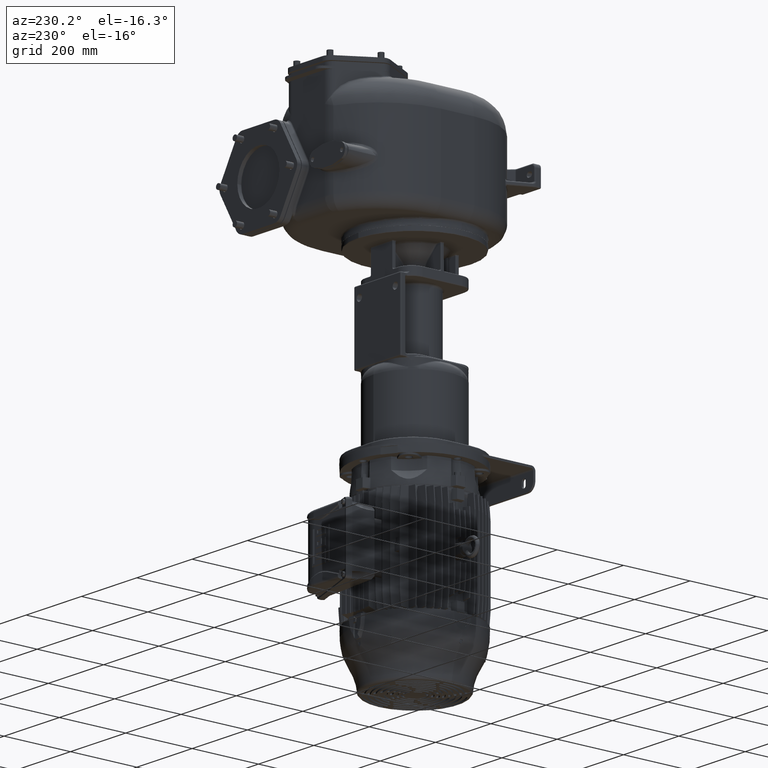
[diagram: clean part render]
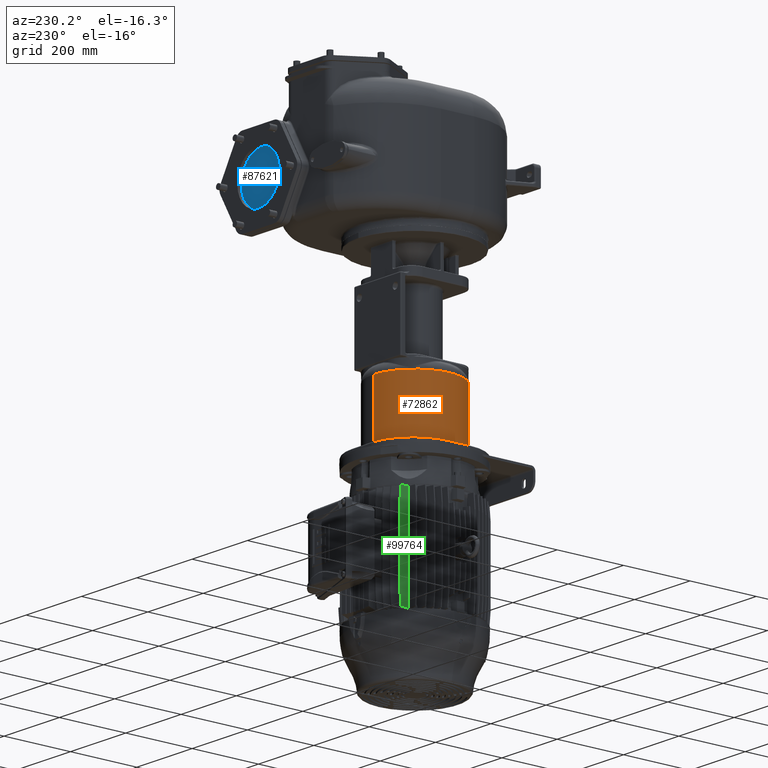
[diagram: same view with three faces highlighted in distinct colors, each labeled with its STEP entity id]
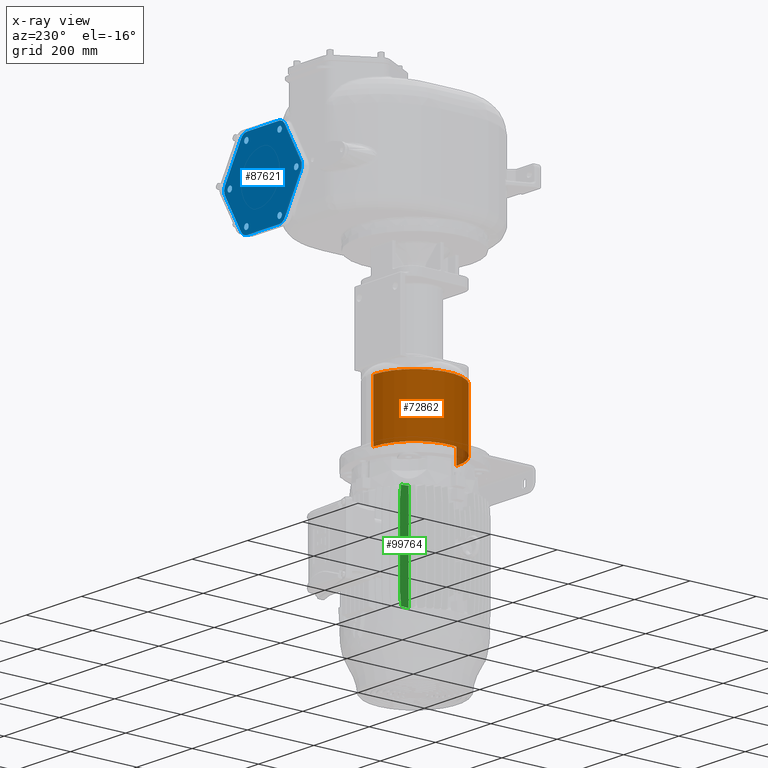
[diagram: x-ray of the same camera — body ghosted, the three highlighted faces saturated]
A machine part, auxiliary view with three faces highlighted in distinct colors.
The next image is the same camera in x-ray (body ghosted, the three faces saturated) — at least one of them is partly hidden behind the body in this view.
Their STEP definitions:

[orange] entity #72862 — the highlighted cylindrical surface (partial cylindrical patch) has radius 125 mm, axis along (0, 0, 1).
#15266=DIRECTION('',(0.E0,0.E0,-1.E0));
#15267=VECTOR('',#15266,1.74E2);
#15268=CARTESIAN_POINT('',(-4.168092298364E-14,1.04E2,-5.095E2));
#15269=LINE('',#15268,#15267);
#15270=CARTESIAN_POINT('',(0.E0,2.29E2,-6.835E2));
#15271=DIRECTION('',(0.E0,0.E0,-1.E0));
#15272=DIRECTION('',(0.E0,-1.E0,0.E0));
#15273=AXIS2_PLACEMENT_3D('',#15270,#15271,#15272);
#15275=CARTESIAN_POINT('',(0.E0,2.29E2,-5.095E2));
#15276=DIRECTION('',(0.E0,0.E0,1.E0));
#15277=DIRECTION('',(0.E0,1.E0,0.E0));
#15278=AXIS2_PLACEMENT_3D('',#15275,#15276,#15277);
#15290=DIRECTION('',(0.E0,0.E0,1.E0));
#15291=VECTOR('',#15290,1.74E2);
#15292=CARTESIAN_POINT('',(-3.345573162230E-14,3.54E2,-6.835E2));
#15293=LINE('',#15292,#15291);
#52955=CARTESIAN_POINT('',(0.E0,3.54E2,-6.835E2));
#52956=VERTEX_POINT('',#52955);
#53013=CARTESIAN_POINT('',(0.E0,3.54E2,-5.095E2));
#53014=CARTESIAN_POINT('',(-2.094145414219E-14,1.04E2,-5.095E2));
#53015=VERTEX_POINT('',#53013);
#53016=VERTEX_POINT('',#53014);
#53017=CARTESIAN_POINT('',(3.487513451665E-14,1.04E2,-6.835E2));
#53018=VERTEX_POINT('',#53017);
#72848=CARTESIAN_POINT('',(0.E0,2.29E2,-7.159E2));
#72849=DIRECTION('',(0.E0,0.E0,1.E0));
#72850=DIRECTION('',(0.E0,1.E0,0.E0));
#72851=AXIS2_PLACEMENT_3D('',#72848,#72849,#72850);
#72852=CYLINDRICAL_SURFACE('',#72851,1.25E2);
#72854=ORIENTED_EDGE('',*,*,#72853,.T.);
#72855=ORIENTED_EDGE('',*,*,#72838,.T.);
#72857=ORIENTED_EDGE('',*,*,#72856,.T.);
#72859=ORIENTED_EDGE('',*,*,#72858,.T.);
#72860=EDGE_LOOP('',(#72854,#72855,#72857,#72859));
#72861=FACE_OUTER_BOUND('',#72860,.F.);
#72862=ADVANCED_FACE('',(#72861),#72852,.T.);
#15274=CIRCLE('',#15273,1.25E2);
#15279=CIRCLE('',#15278,1.25E2);
#72838=EDGE_CURVE('',#53018,#52956,#15274,.T.);
#72853=EDGE_CURVE('',#53016,#53018,#15269,.T.);
#72856=EDGE_CURVE('',#52956,#53015,#15293,.T.);
#72858=EDGE_CURVE('',#53015,#53016,#15279,.T.);

[blue] entity #87621 — the highlighted planar face has unit normal (0, 1, 0).
#28265=CARTESIAN_POINT('',(1.072649730810E2,5.49E2,6.5E1));
#28266=DIRECTION('',(0.E0,1.E0,0.E0));
#28267=DIRECTION('',(-8.660254037844E-1,0.E0,5.E-1));
#28268=AXIS2_PLACEMENT_3D('',#28265,#28266,#28267);
#28270=DIRECTION('',(-5.E-1,0.E0,-8.660254037844E-1));
#28271=VECTOR('',#28270,1.154700538379E2);
#28272=CARTESIAN_POINT('',(8.561433798643E1,5.49E2,7.75E1));
#28273=LINE('',#28272,#28271);
#28274=CARTESIAN_POINT('',(4.952994616207E1,5.49E2,-3.5E1));
#28275=DIRECTION('',(0.E0,1.E0,0.E0));
#28276=DIRECTION('',(-8.660254037844E-1,0.E0,-5.E-1));
#28277=AXIS2_PLACEMENT_3D('',#28274,#28275,#28276);
#28279=DIRECTION('',(5.E-1,0.E0,-8.660254037844E-1));
#28280=VECTOR('',#28279,1.154700538379E2);
#28281=CARTESIAN_POINT('',(2.787931106746E1,5.49E2,-4.75E1));
#28282=LINE('',#28281,#28280);
#28283=CARTESIAN_POINT('',(1.072649730810E2,5.49E2,-1.35E2));
#28284=DIRECTION('',(0.E0,1.E0,0.E0));
#28285=DIRECTION('',(0.E0,0.E0,-1.E0));
#28286=AXIS2_PLACEMENT_3D('',#28283,#28284,#28285);
#28288=DIRECTION('',(1.E0,0.E0,0.E0));
#28289=VECTOR('',#28288,1.154700538379E2);
#28290=CARTESIAN_POINT('',(1.072649730810E2,5.49E2,-1.6E2));
#28291=LINE('',#28290,#28289);
#28292=CARTESIAN_POINT('',(2.227350269190E2,5.49E2,-1.35E2));
#28293=DIRECTION('',(0.E0,1.E0,0.E0));
#28294=DIRECTION('',(8.660254037844E-1,0.E0,-5.E-1));
#28295=AXIS2_PLACEMENT_3D('',#28292,#28293,#28294);
#28297=DIRECTION('',(5.E-1,0.E0,8.660254037844E-1));
#28298=VECTOR('',#28297,1.154700538379E2);
#28299=CARTESIAN_POINT('',(2.443856620136E2,5.49E2,-1.475E2));
#28300=LINE('',#28299,#28298);
#28301=CARTESIAN_POINT('',(2.804700538379E2,5.49E2,-3.5E1));
#28302=DIRECTION('',(0.E0,1.E0,0.E0));
#28303=DIRECTION('',(8.660254037844E-1,0.E0,5.E-1));
#28304=AXIS2_PLACEMENT_3D('',#28301,#28302,#28303);
#28306=DIRECTION('',(-5.E-1,0.E0,8.660254037844E-1));
#28307=VECTOR('',#28306,1.154700538379E2);
#28308=CARTESIAN_POINT('',(3.021206889325E2,5.49E2,-2.25E1));
#28309=LINE('',#28308,#28307);
#28310=CARTESIAN_POINT('',(2.227350269190E2,5.49E2,6.5E1));
#28311=DIRECTION('',(0.E0,1.E0,0.E0));
#28312=DIRECTION('',(0.E0,0.E0,1.E0));
#28313=AXIS2_PLACEMENT_3D('',#28310,#28311,#28312);
#28315=DIRECTION('',(-1.E0,0.E0,0.E0));
#28316=VECTOR('',#28315,1.154700538379E2);
#28317=CARTESIAN_POINT('',(2.227350269190E2,5.49E2,9.E1));
#28318=LINE('',#28317,#28316);
#28319=CARTESIAN_POINT('',(4.5E1,5.49E2,-3.5E1));
#28320=DIRECTION('',(0.E0,1.E0,0.E0));
#28321=DIRECTION('',(1.E0,0.E0,0.E0));
#28322=AXIS2_PLACEMENT_3D('',#28319,#28320,#28321);
#28324=CARTESIAN_POINT('',(4.5E1,5.49E2,-3.5E1));
#28325=DIRECTION('',(0.E0,1.E0,0.E0));
#28326=DIRECTION('',(-1.E0,0.E0,0.E0));
#28327=AXIS2_PLACEMENT_3D('',#28324,#28325,#28326);
#28329=CARTESIAN_POINT('',(2.85E2,5.49E2,-3.5E1));
#28330=DIRECTION('',(0.E0,1.E0,0.E0));
#28331=DIRECTION('',(1.E0,0.E0,0.E0));
#28332=AXIS2_PLACEMENT_3D('',#28329,#28330,#28331);
#28334=CARTESIAN_POINT('',(2.85E2,5.49E2,-3.5E1));
#28335=DIRECTION('',(0.E0,1.E0,0.E0));
#28336=DIRECTION('',(-1.E0,0.E0,0.E0));
#28337=AXIS2_PLACEMENT_3D('',#28334,#28335,#28336);
#28339=CARTESIAN_POINT('',(1.05E2,5.49E2,-1.389230484541E2));
#28340=DIRECTION('',(0.E0,1.E0,0.E0));
#28341=DIRECTION('',(1.E0,0.E0,0.E0));
#28342=AXIS2_PLACEMENT_3D('',#28339,#28340,#28341);
#28344=CARTESIAN_POINT('',(1.05E2,5.49E2,-1.389230484541E2));
#28345=DIRECTION('',(0.E0,1.E0,0.E0));
#28346=DIRECTION('',(-1.E0,0.E0,0.E0));
#28347=AXIS2_PLACEMENT_3D('',#28344,#28345,#28346);
#28349=CARTESIAN_POINT('',(2.25E2,5.49E2,-1.389230484541E2));
#28350=DIRECTION('',(0.E0,1.E0,0.E0));
#28351=DIRECTION('',(1.E0,0.E0,0.E0));
#28352=AXIS2_PLACEMENT_3D('',#28349,#28350,#28351);
#28354=CARTESIAN_POINT('',(2.25E2,5.49E2,-1.389230484541E2));
#28355=DIRECTION('',(0.E0,1.E0,0.E0));
#28356=DIRECTION('',(-1.E0,0.E0,0.E0));
#28357=AXIS2_PLACEMENT_3D('',#28354,#28355,#28356);
#28359=CARTESIAN_POINT('',(1.05E2,5.49E2,6.892304845413E1));
#28360=DIRECTION('',(0.E0,1.E0,0.E0));
#28361=DIRECTION('',(1.E0,0.E0,0.E0));
#28362=AXIS2_PLACEMENT_3D('',#28359,#28360,#28361);
#28364=CARTESIAN_POINT('',(1.05E2,5.49E2,6.892304845413E1));
#28365=DIRECTION('',(0.E0,1.E0,0.E0));
#28366=DIRECTION('',(-1.E0,0.E0,0.E0));
#28367=AXIS2_PLACEMENT_3D('',#28364,#28365,#28366);
#28369=CARTESIAN_POINT('',(2.25E2,5.49E2,6.892304845413E1));
#28370=DIRECTION('',(0.E0,1.E0,0.E0));
#28371=DIRECTION('',(1.E0,0.E0,0.E0));
#28372=AXIS2_PLACEMENT_3D('',#28369,#28370,#28371);
#28374=CARTESIAN_POINT('',(2.25E2,5.49E2,6.892304845413E1));
#28375=DIRECTION('',(0.E0,1.E0,0.E0));
#28376=DIRECTION('',(-1.E0,0.E0,0.E0));
#28377=AXIS2_PLACEMENT_3D('',#28374,#28375,#28376);
#51110=CARTESIAN_POINT('',(8.561433798643E1,5.49E2,7.75E1));
#51111=CARTESIAN_POINT('',(1.072649730810E2,5.49E2,9.E1));
#51112=VERTEX_POINT('',#51110);
#51113=VERTEX_POINT('',#51111);
#51114=CARTESIAN_POINT('',(2.227350269190E2,5.49E2,9.E1));
#51115=CARTESIAN_POINT('',(2.443856620136E2,5.49E2,7.75E1));
#51116=VERTEX_POINT('',#51114);
#51117=VERTEX_POINT('',#51115);
#51118=CARTESIAN_POINT('',(3.021206889325E2,5.49E2,-2.25E1));
#51119=CARTESIAN_POINT('',(3.021206889325E2,5.49E2,-4.75E1));
#51120=VERTEX_POINT('',#51118);
#51121=VERTEX_POINT('',#51119);
#51122=CARTESIAN_POINT('',(2.443856620136E2,5.49E2,-1.475E2));
#51123=CARTESIAN_POINT('',(2.227350269190E2,5.49E2,-1.6E2));
#51124=VERTEX_POINT('',#51122);
#51125=VERTEX_POINT('',#51123);
#51126=CARTESIAN_POINT('',(1.072649730810E2,5.49E2,-1.6E2));
#51127=CARTESIAN_POINT('',(8.561433798643E1,5.49E2,-1.475E2));
#51128=VERTEX_POINT('',#51126);
#51129=VERTEX_POINT('',#51127);
#51130=CARTESIAN_POINT('',(2.787931106746E1,5.49E2,-4.75E1));
#51131=CARTESIAN_POINT('',(2.787931106746E1,5.49E2,-2.25E1));
#51132=VERTEX_POINT('',#51130);
#51133=VERTEX_POINT('',#51131);
#51416=CARTESIAN_POINT('',(5.3E1,5.49E2,-3.5E1));
#51417=VERTEX_POINT('',#51416);
#51418=CARTESIAN_POINT('',(3.7E1,5.49E2,-3.5E1));
#51419=VERTEX_POINT('',#51418);
#51420=CARTESIAN_POINT('',(2.93E2,5.49E2,-3.5E1));
#51421=VERTEX_POINT('',#51420);
#51422=CARTESIAN_POINT('',(2.77E2,5.49E2,-3.5E1));
#51423=VERTEX_POINT('',#51422);
#51424=CARTESIAN_POINT('',(1.13E2,5.49E2,-1.389230484541E2));
#51425=VERTEX_POINT('',#51424);
#51426=CARTESIAN_POINT('',(9.7E1,5.49E2,-1.389230484541E2));
#51427=VERTEX_POINT('',#51426);
#51428=CARTESIAN_POINT('',(2.33E2,5.49E2,-1.389230484541E2));
#51429=VERTEX_POINT('',#51428);
#51430=CARTESIAN_POINT('',(2.17E2,5.49E2,-1.389230484541E2));
#51431=VERTEX_POINT('',#51430);
#51432=CARTESIAN_POINT('',(1.13E2,5.49E2,6.892304845413E1));
#51433=VERTEX_POINT('',#51432);
#51434=CARTESIAN_POINT('',(9.7E1,5.49E2,6.892304845413E1));
#51435=VERTEX_POINT('',#51434);
#51436=CARTESIAN_POINT('',(2.33E2,5.49E2,6.892304845413E1));
#51437=VERTEX_POINT('',#51436);
#51438=CARTESIAN_POINT('',(2.17E2,5.49E2,6.892304845413E1));
#51439=VERTEX_POINT('',#51438);
#87559=CARTESIAN_POINT('',(0.E0,5.49E2,-1.75E2));
#87560=DIRECTION('',(0.E0,1.E0,0.E0));
#87561=DIRECTION('',(1.E0,0.E0,0.E0));
#87562=AXIS2_PLACEMENT_3D('',#87559,#87560,#87561);
#87563=PLANE('',#87562);
#87564=ORIENTED_EDGE('',*,*,#86508,.F.);
#87565=ORIENTED_EDGE('',*,*,#86529,.T.);
#87566=ORIENTED_EDGE('',*,*,#86568,.F.);
#87567=ORIENTED_EDGE('',*,*,#86584,.T.);
#87569=ORIENTED_EDGE('',*,*,#87568,.F.);
#87571=ORIENTED_EDGE('',*,*,#87570,.T.);
#87573=ORIENTED_EDGE('',*,*,#87572,.F.);
#87575=ORIENTED_EDGE('',*,*,#87574,.T.);
#87577=ORIENTED_EDGE('',*,*,#87576,.F.);
#87579=ORIENTED_EDGE('',*,*,#87578,.T.);
#87581=ORIENTED_EDGE('',*,*,#87580,.F.);
#87582=ORIENTED_EDGE('',*,*,#87552,.T.);
#87583=EDGE_LOOP('',(#87564,#87565,#87566,#87567,#87569,#87571,#87573,#87575,
#87577,#87579,#87581,#87582));
#87584=FACE_OUTER_BOUND('',#87583,.F.);
#87586=ORIENTED_EDGE('',*,*,#87585,.T.);
#87588=ORIENTED_EDGE('',*,*,#87587,.T.);
#87589=EDGE_LOOP('',(#87586,#87588));
#87590=FACE_BOUND('',#87589,.F.);
#87592=ORIENTED_EDGE('',*,*,#87591,.T.);
#87594=ORIENTED_EDGE('',*,*,#87593,.T.);
#87595=EDGE_LOOP('',(#87592,#87594));
#87596=FACE_BOUND('',#87595,.F.);
#87598=ORIENTED_EDGE('',*,*,#87597,.T.);
#87600=ORIENTED_EDGE('',*,*,#87599,.T.);
#87601=EDGE_LOOP('',(#87598,#87600));
#87602=FACE_BOUND('',#87601,.F.);
#87604=ORIENTED_EDGE('',*,*,#87603,.T.);
#87606=ORIENTED_EDGE('',*,*,#87605,.T.);
#87607=EDGE_LOOP('',(#87604,#87606));
#87608=FACE_BOUND('',#87607,.F.);
#87610=ORIENTED_EDGE('',*,*,#87609,.T.);
#87612=ORIENTED_EDGE('',*,*,#87611,.T.);
#87613=EDGE_LOOP('',(#87610,#87612));
#87614=FACE_BOUND('',#87613,.F.);
#87616=ORIENTED_EDGE('',*,*,#87615,.T.);
#87618=ORIENTED_EDGE('',*,*,#87617,.T.);
#87619=EDGE_LOOP('',(#87616,#87618));
#87620=FACE_BOUND('',#87619,.F.);
#87621=ADVANCED_FACE('',(#87584,#87590,#87596,#87602,#87608,#87614,#87620),
#87563,.T.);
#28269=CIRCLE('',#28268,2.5E1);
#28278=CIRCLE('',#28277,2.5E1);
#28287=CIRCLE('',#28286,2.5E1);
#28296=CIRCLE('',#28295,2.5E1);
#28305=CIRCLE('',#28304,2.5E1);
#28314=CIRCLE('',#28313,2.5E1);
#28323=CIRCLE('',#28322,8.E0);
#28328=CIRCLE('',#28327,8.E0);
#28333=CIRCLE('',#28332,8.E0);
#28338=CIRCLE('',#28337,8.E0);
#28343=CIRCLE('',#28342,8.E0);
#28348=CIRCLE('',#28347,8.E0);
#28353=CIRCLE('',#28352,8.E0);
#28358=CIRCLE('',#28357,8.E0);
#28363=CIRCLE('',#28362,8.E0);
#28368=CIRCLE('',#28367,8.E0);
#28373=CIRCLE('',#28372,8.E0);
#28378=CIRCLE('',#28377,8.E0);
#86508=EDGE_CURVE('',#51112,#51113,#28269,.T.);
#86529=EDGE_CURVE('',#51112,#51133,#28273,.T.);
#86568=EDGE_CURVE('',#51132,#51133,#28278,.T.);
#86584=EDGE_CURVE('',#51132,#51129,#28282,.T.);
#87552=EDGE_CURVE('',#51116,#51113,#28318,.T.);
#87568=EDGE_CURVE('',#51128,#51129,#28287,.T.);
#87570=EDGE_CURVE('',#51128,#51125,#28291,.T.);
#87572=EDGE_CURVE('',#51124,#51125,#28296,.T.);
#87574=EDGE_CURVE('',#51124,#51121,#28300,.T.);
#87576=EDGE_CURVE('',#51120,#51121,#28305,.T.);
#87578=EDGE_CURVE('',#51120,#51117,#28309,.T.);
#87580=EDGE_CURVE('',#51116,#51117,#28314,.T.);
#87585=EDGE_CURVE('',#51417,#51419,#28323,.T.);
#87587=EDGE_CURVE('',#51419,#51417,#28328,.T.);
#87591=EDGE_CURVE('',#51421,#51423,#28333,.T.);
#87593=EDGE_CURVE('',#51423,#51421,#28338,.T.);
#87597=EDGE_CURVE('',#51425,#51427,#28343,.T.);
#87599=EDGE_CURVE('',#51427,#51425,#28348,.T.);
#87603=EDGE_CURVE('',#51429,#51431,#28353,.T.);
#87605=EDGE_CURVE('',#51431,#51429,#28358,.T.);
#87609=EDGE_CURVE('',#51433,#51435,#28363,.T.);
#87611=EDGE_CURVE('',#51435,#51433,#28368,.T.);
#87615=EDGE_CURVE('',#51437,#51439,#28373,.T.);
#87617=EDGE_CURVE('',#51439,#51437,#28378,.T.);

[green] entity #99764 — the highlighted planar face has unit normal (0.9994, -0.0349, 0).
#37083=CARTESIAN_POINT('',(-1.101147311164E2,3.622900047247E2,
-8.015464836468E2));
#37084=CARTESIAN_POINT('',(-1.101424371468E2,3.614966078212E2,
-8.014945136354E2));
#37085=CARTESIAN_POINT('',(-1.101974784210E2,3.599203035165E2,
-8.013916957512E2));
#37086=CARTESIAN_POINT('',(-1.102789065886E2,3.575885575057E2,
-8.012408355918E2));
#37087=CARTESIAN_POINT('',(-1.103592815441E2,3.552869060907E2,
-8.010931931508E2));
#37088=CARTESIAN_POINT('',(-1.104386551003E2,3.530139485374E2,
-8.009486593280E2));
#37089=CARTESIAN_POINT('',(-1.105170836132E2,3.507680487845E2,
-8.008071233090E2));
#37090=CARTESIAN_POINT('',(-1.105946196539E2,3.485477073514E2,
-8.006684825743E2));
#37091=CARTESIAN_POINT('',(-1.106713137761E2,3.463514749726E2,
-8.005326409411E2));
#37092=CARTESIAN_POINT('',(-1.107472162633E2,3.441779121418E2,
-8.003995052100E2));
#37093=CARTESIAN_POINT('',(-1.108223695247E2,3.420258043094E2,
-8.002689982198E2));
#37094=CARTESIAN_POINT('',(-1.108720142984E2,3.406041639962E2,
-8.001836726655E2));
#37095=CARTESIAN_POINT('',(-1.108967188280E2,3.398967188280E2,
-8.001414357166E2));
#37195=CARTESIAN_POINT('',(-1.108967188280E2,3.398967188280E2,
-1.095858564283E3));
#37196=CARTESIAN_POINT('',(-1.108719900162E2,3.406048593476E2,
-1.095816285820E3));
#37197=CARTESIAN_POINT('',(-1.108223011828E2,3.420277613661E2,
-1.095730884056E3));
#37198=CARTESIAN_POINT('',(-1.107470951907E2,3.441813792024E2,
-1.095600283737E3));
#37199=CARTESIAN_POINT('',(-1.106711537913E2,3.463560563533E2,
-1.095467077231E3));
#37200=CARTESIAN_POINT('',(-1.105944349039E2,3.485529978340E2,
-1.095331188710E3));
#37201=CARTESIAN_POINT('',(-1.105168886642E2,3.507736316389E2,
-1.095192526494E3));
#37202=CARTESIAN_POINT('',(-1.104384649392E2,3.530193931321E2,
-1.095050995821E3));
#37203=CARTESIAN_POINT('',(-1.103591117108E2,3.552917728714E2,
-1.094906496210E3));
#37204=CARTESIAN_POINT('',(-1.102787729001E2,3.575923731951E2,
-1.094758916998E3));
#37205=CARTESIAN_POINT('',(-1.101973982072E2,3.599226477511E2,
-1.094608156686E3));
#37206=CARTESIAN_POINT('',(-1.101424022279E2,3.614975060391E2,
-1.094505416631E3));
#37207=CARTESIAN_POINT('',(-1.101147224775E2,3.622901503812E2,
-1.094453495876E3));
#37221=CARTESIAN_POINT('',(-1.108967188280E2,3.398967188280E2,
-1.095858564283E3));
#37984=DIRECTION('',(1.040899428232E-9,-2.075928641999E-7,1.E0));
#37985=VECTOR('',#37984,2.123052209988E2);
#37986=CARTESIAN_POINT('',(-1.099902394990E2,3.658549408907E2,
-1.054151863488E3));
#37987=LINE('',#37986,#37985);
#38003=CARTESIAN_POINT('',(-1.099902392780E2,3.658548968177E2,
-8.418466424895E2));
#38004=CARTESIAN_POINT('',(-1.100040310452E2,3.654599522806E2,
-8.374084351876E2));
#38005=CARTESIAN_POINT('',(-1.100316425284E2,3.646692745501E2,
-8.285056044094E2));
#38006=CARTESIAN_POINT('',(-1.100731401461E2,3.634808856270E2,
-8.150700230220E2));
#38007=CARTESIAN_POINT('',(-1.101008630842E2,3.626871332066E2,
-8.060629119332E2));
#38008=CARTESIAN_POINT('',(-1.101147311164E2,3.622900047247E2,
-8.015464836468E2));
#38017=DIRECTION('',(0.E0,0.E0,1.E0));
#38018=VECTOR('',#38017,2.957171285669E2);
#38019=CARTESIAN_POINT('',(-1.108967188280E2,3.398967188280E2,
-1.095858564283E3));
#38020=LINE('',#38019,#38018);
#38021=CARTESIAN_POINT('',(-1.101147224775E2,3.622901503812E2,
-1.094453495876E3));
#38022=CARTESIAN_POINT('',(-1.101008489216E2,3.626874370418E2,
-1.089935268573E3));
#38023=CARTESIAN_POINT('',(-1.100731314494E2,3.634811888583E2,
-1.080925645847E3));
#38024=CARTESIAN_POINT('',(-1.100316279676E2,3.646696544309E2,
-1.067490795925E3));
#38025=CARTESIAN_POINT('',(-1.100040283261E2,3.654600805460E2,
-1.058589122639E3));
#38026=CARTESIAN_POINT('',(-1.099902394990E2,3.658549408907E2,
-1.054151863488E3));
#56272=VERTEX_POINT('',#37221);
#56293=VERTEX_POINT('',#37207);
#56531=CARTESIAN_POINT('',(-1.101147311164E2,3.622900047247E2,
-8.015464836468E2));
#56533=VERTEX_POINT('',#56531);
#56535=VERTEX_POINT('',#37095);
#56992=VERTEX_POINT('',#38026);
#57025=CARTESIAN_POINT('',(-1.099902392780E2,3.658548968177E2,
-8.418466424895E2));
#57026=VERTEX_POINT('',#57025);
#99750=CARTESIAN_POINT('',(-1.099902392780E2,3.658548968177E2,-7.995E2));
#99751=DIRECTION('',(9.993908270191E-1,-3.489949670291E-2,0.E0));
#99752=DIRECTION('',(3.489949670291E-2,9.993908270191E-1,0.E0));
#99753=AXIS2_PLACEMENT_3D('',#99750,#99751,#99752);
#99754=PLANE('',#99753);
#99755=ORIENTED_EDGE('',*,*,#99705,.T.);
#99756=ORIENTED_EDGE('',*,*,#99744,.T.);
#99757=ORIENTED_EDGE('',*,*,#98716,.T.);
#99758=ORIENTED_EDGE('',*,*,#98739,.F.);
#99759=ORIENTED_EDGE('',*,*,#98767,.T.);
#99761=ORIENTED_EDGE('',*,*,#99760,.T.);
#99762=EDGE_LOOP('',(#99755,#99756,#99757,#99758,#99759,#99761));
#99763=FACE_OUTER_BOUND('',#99762,.F.);
#99764=ADVANCED_FACE('',(#99763),#99754,.F.);
#37096=B_SPLINE_CURVE_WITH_KNOTS('',3,(#37083,#37084,#37085,#37086,#37087,
#37088,#37089,#37090,#37091,#37092,#37093,#37094,#37095),.UNSPECIFIED.,.F.,.F.,(
4,1,1,1,1,1,1,1,1,1,4),(0.E0,1.E-1,2.E-1,3.E-1,4.E-1,5.E-1,6.E-1,7.E-1,8.E-1,
9.E-1,1.E0),.UNSPECIFIED.);
#37208=B_SPLINE_CURVE_WITH_KNOTS('',3,(#37195,#37196,#37197,#37198,#37199,
#37200,#37201,#37202,#37203,#37204,#37205,#37206,#37207),.UNSPECIFIED.,.F.,.F.,(
4,1,1,1,1,1,1,1,1,1,4),(0.E0,1.E-1,2.E-1,3.E-1,4.E-1,5.E-1,6.E-1,7.E-1,8.E-1,
9.E-1,1.E0),.UNSPECIFIED.);
#38009=B_SPLINE_CURVE_WITH_KNOTS('',3,(#38003,#38004,#38005,#38006,#38007,
#38008),.UNSPECIFIED.,.F.,.F.,(4,1,1,4),(0.E0,3.333333333333E-1,
6.666666666667E-1,1.E0),.UNSPECIFIED.);
#38027=B_SPLINE_CURVE_WITH_KNOTS('',3,(#38021,#38022,#38023,#38024,#38025,
#38026),.UNSPECIFIED.,.F.,.F.,(4,1,1,4),(0.E0,3.333333333333E-1,
6.666666666667E-1,1.E0),.UNSPECIFIED.);
#98716=EDGE_CURVE('',#56533,#56535,#37096,.T.);
#98739=EDGE_CURVE('',#56272,#56535,#38020,.T.);
#98767=EDGE_CURVE('',#56272,#56293,#37208,.T.);
#99705=EDGE_CURVE('',#56992,#57026,#37987,.T.);
#99744=EDGE_CURVE('',#57026,#56533,#38009,.T.);
#99760=EDGE_CURVE('',#56293,#56992,#38027,.T.);